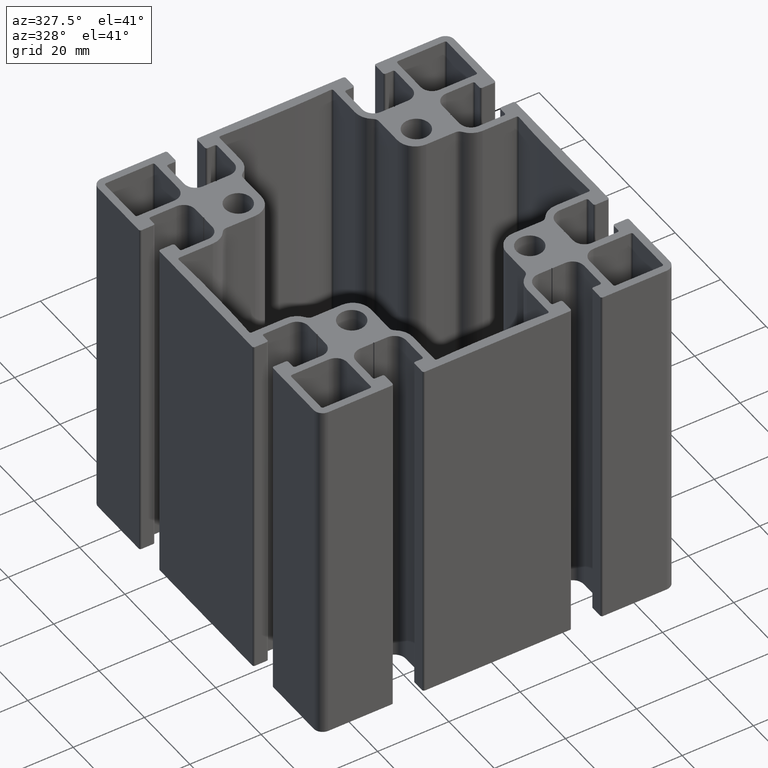
[diagram: clean part render]
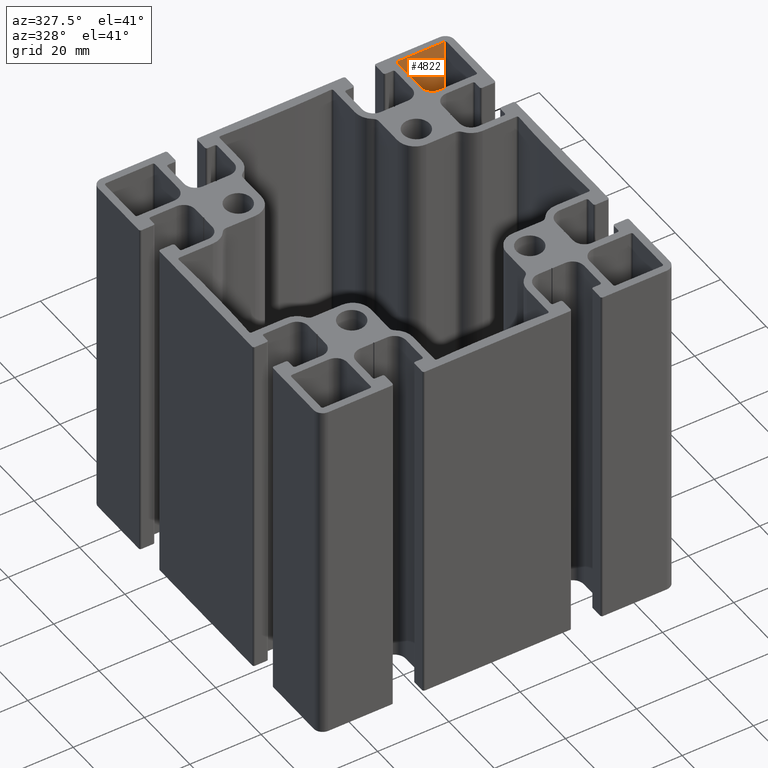
[diagram: same view with one face highlighted and labeled with its STEP entity id]
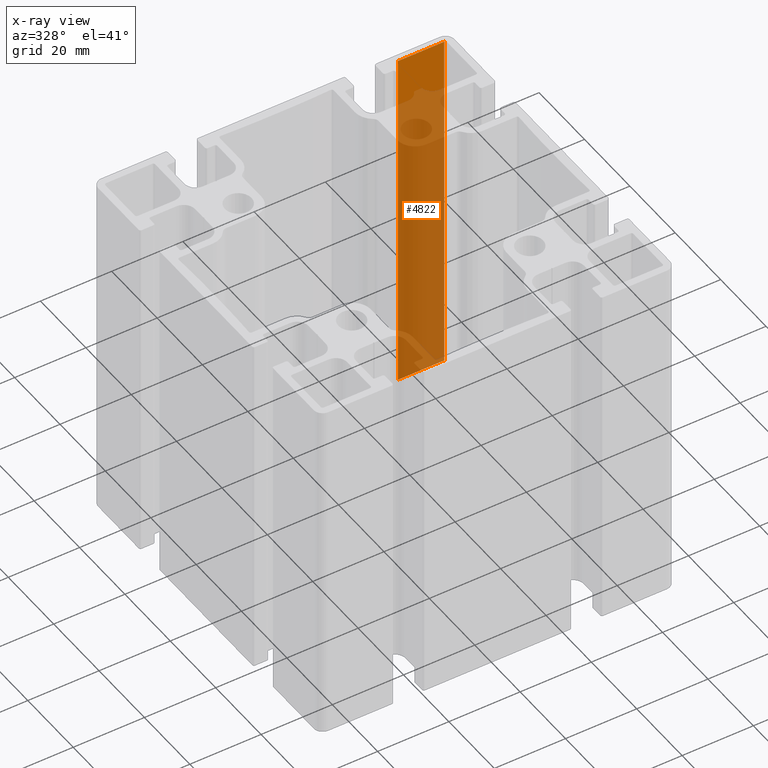
[diagram: x-ray of the same camera — body ghosted, the highlighted face saturated]
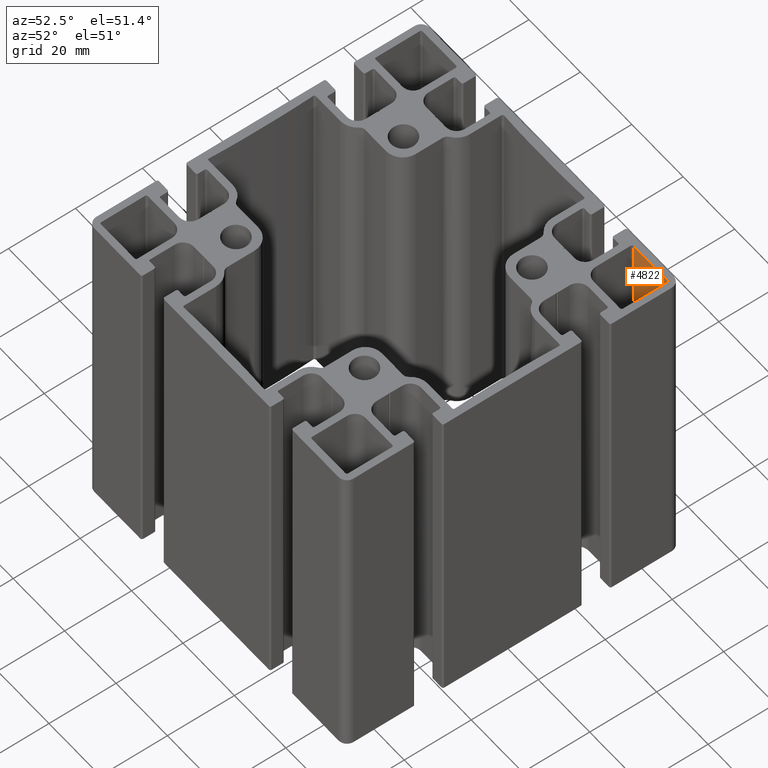
[diagram: same view with one face highlighted and labeled with its STEP entity id]
A machine part, auxiliary view. The second image highlights one B-rep face of the part: STEP entity #4822.
The next image is the same camera in x-ray: the body ghosted, the highlighted face saturated — about 87% of this face is hidden behind the body in this view.
A second angle (auxiliary view) of the same face is appended — the face is thin or edge-on in the first view.
In plain terms, the highlighted planar face has unit normal (-0, 1, 0).
Its self-contained STEP definition (entity closure, byte-faithful):
#474=FACE_OUTER_BOUND('',#724,.T.);
#724=EDGE_LOOP('',(#3411,#3412,#3413,#3414));
#1040=LINE('',#7389,#1532);
#1041=LINE('',#7393,#1533);
#1042=LINE('',#7395,#1534);
#1043=LINE('',#7396,#1535);
#1532=VECTOR('',#5918,100.);
#1533=VECTOR('',#5923,12.9999999999999);
#1534=VECTOR('',#5924,100.);
#1535=VECTOR('',#5925,12.9999999999999);
#2045=VERTEX_POINT('',#7386);
#2046=VERTEX_POINT('',#7388);
#2047=VERTEX_POINT('',#7392);
#2048=VERTEX_POINT('',#7394);
#2605=EDGE_CURVE('',#2045,#2046,#1040,.T.);
#2607=EDGE_CURVE('',#2047,#2045,#1041,.T.);
#2608=EDGE_CURVE('',#2047,#2048,#1042,.T.);
#2609=EDGE_CURVE('',#2046,#2048,#1043,.T.);
#3411=ORIENTED_EDGE('',*,*,#2607,.F.);
#3412=ORIENTED_EDGE('',*,*,#2608,.T.);
#3413=ORIENTED_EDGE('',*,*,#2609,.F.);
#3414=ORIENTED_EDGE('',*,*,#2605,.F.);
#4653=PLANE('',#5160);
#4822=ADVANCED_FACE('',(#474),#4653,.F.);
#5160=AXIS2_PLACEMENT_3D('',#7391,#5921,#5922);
#5918=DIRECTION('',(0.,0.,1.));
#5921=DIRECTION('center_axis',(-3.67842508589656E-12,1.,0.));
#5922=DIRECTION('ref_axis',(-1.,-3.67847974303004E-12,0.));
#5923=DIRECTION('',(-1.,-3.67842508589656E-12,0.));
#5924=DIRECTION('',(0.,0.,1.));
#5925=DIRECTION('',(1.,3.67842508589656E-12,0.));
#7386=CARTESIAN_POINT('',(34.4999999996684,48.0000000000469,0.));
#7388=CARTESIAN_POINT('',(34.4999999996684,48.0000000000469,100.));
#7389=CARTESIAN_POINT('',(34.4999999996684,48.0000000000469,0.));
#7391=CARTESIAN_POINT('Origin',(47.4999999996683,48.0000000000947,0.));
#7392=CARTESIAN_POINT('',(47.4999999996683,48.0000000000947,0.));
#7393=CARTESIAN_POINT('',(23.7499999997151,48.0000000000074,0.));
#7394=CARTESIAN_POINT('',(47.4999999996683,48.0000000000947,100.));
#7395=CARTESIAN_POINT('',(47.4999999996683,48.0000000000947,0.));
#7396=CARTESIAN_POINT('',(23.7499999997151,48.0000000000074,100.));